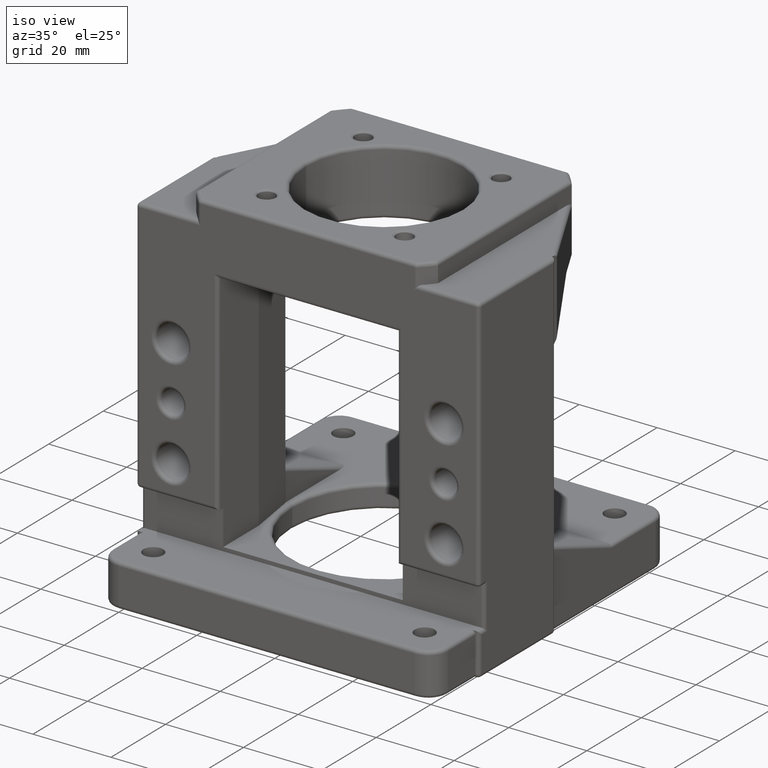
[diagram: clean part render]
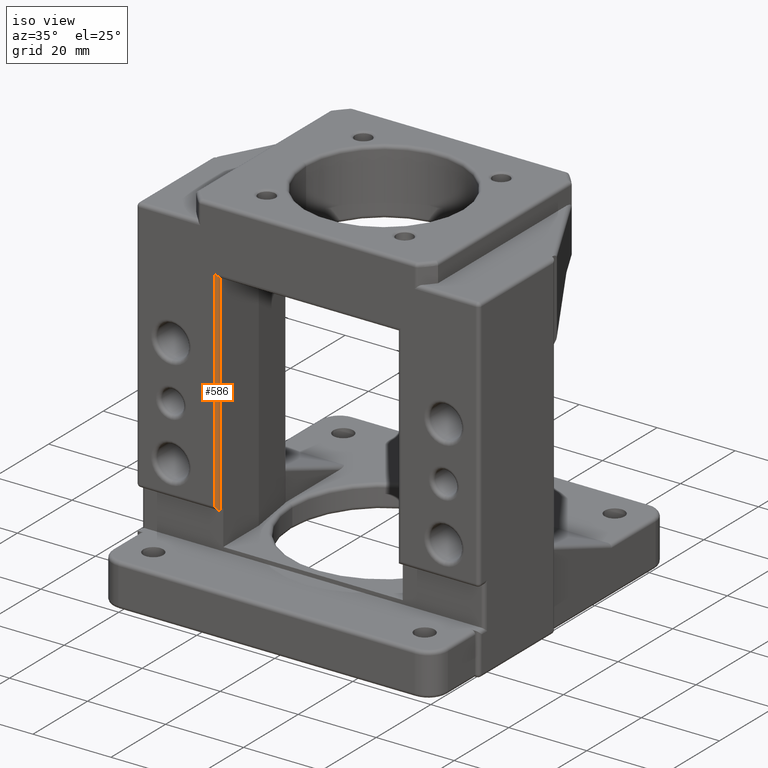
[diagram: same view with one face highlighted and labeled with its STEP entity id]
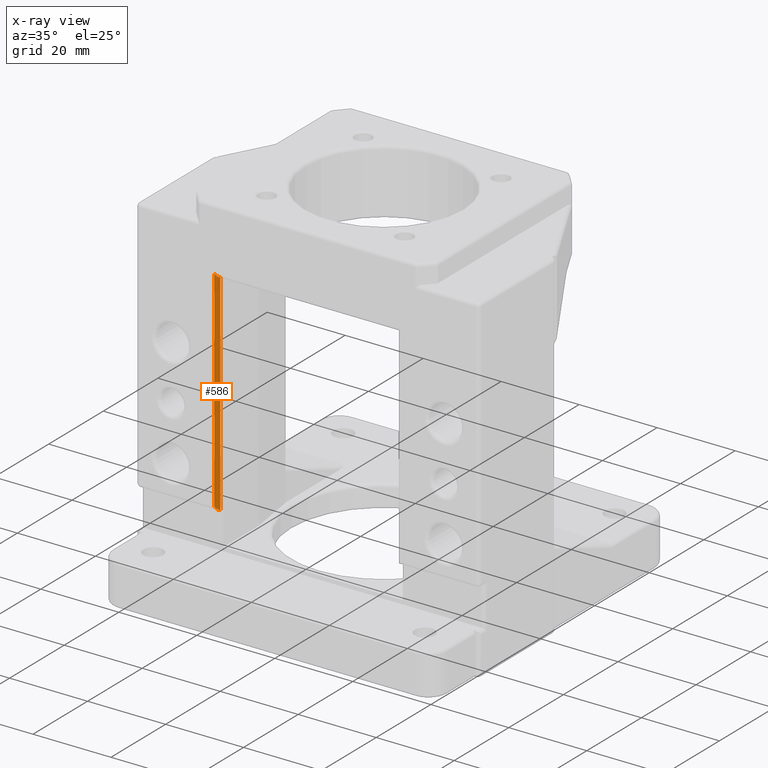
[diagram: x-ray of the same camera — body ghosted, the highlighted face saturated]
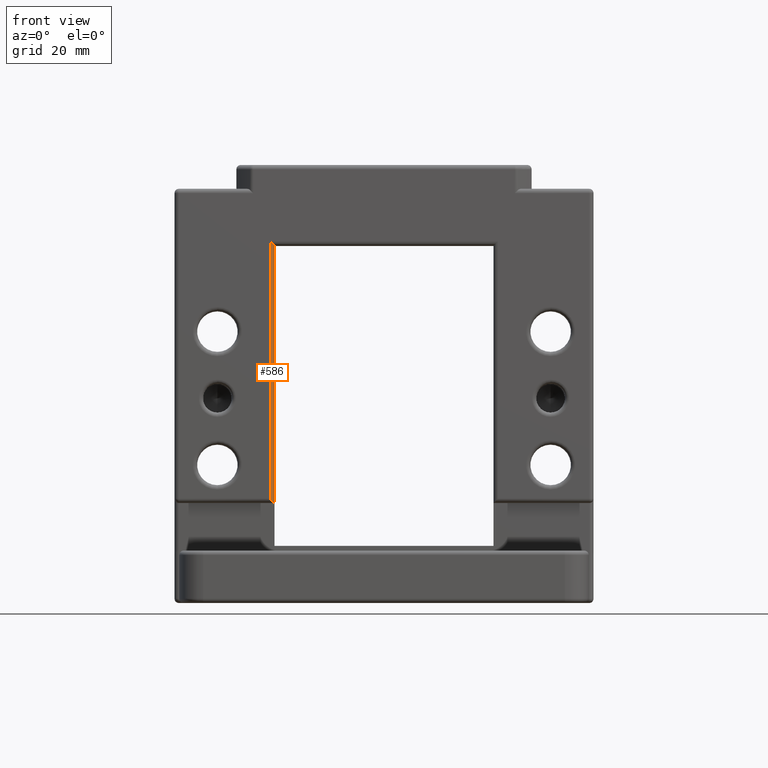
[diagram: same view with one face highlighted and labeled with its STEP entity id]
A machine part, iso view. The second image highlights one B-rep face of the part: STEP entity #586.
The next image is the same camera in x-ray: the body ghosted, the highlighted face saturated — about 0% of this face is hidden behind the body in this view.
A second angle (front view) of the same face is appended — the face is thin or edge-on in the first view.
In plain terms, the highlighted cylindrical surface (edge-blend (fillet) strip) has radius 0.9 mm, axis along (0, -0, -1).
Its self-contained STEP definition (entity closure, byte-faithful):
#399 =( BOUNDED_CURVE ( )  B_SPLINE_CURVE ( 3, ( #2135, #2136, #2137, #2138 ),
 .UNSPECIFIED., .F., .T. ) 
 B_SPLINE_CURVE_WITH_KNOTS ( ( 4, 4 ),
 ( 1.570796326794896600, 3.141592653589793100 ),
 .UNSPECIFIED. ) 
 CURVE ( )  GEOMETRIC_REPRESENTATION_ITEM ( )  RATIONAL_B_SPLINE_CURVE ( ( 1.000000000000000000, 0.8047378541243649400, 0.8047378541243649400, 1.000000000000000000 ) ) 
 REPRESENTATION_ITEM ( '' )  );
#418 =( BOUNDED_CURVE ( )  B_SPLINE_CURVE ( 3, ( #2104, #2105, #2106, #2107 ),
 .UNSPECIFIED., .F., .T. ) 
 B_SPLINE_CURVE_WITH_KNOTS ( ( 4, 4 ),
 ( 4.712388980384689700, 6.283185307179578200 ),
 .UNSPECIFIED. ) 
 CURVE ( )  GEOMETRIC_REPRESENTATION_ITEM ( )  RATIONAL_B_SPLINE_CURVE ( ( 1.000000000000000000, 0.8047378541243668200, 0.8047378541243668200, 1.000000000000000000 ) ) 
 REPRESENTATION_ITEM ( '' )  );
#450 = CARTESIAN_POINT ( 'NONE',  ( -22.99999999999999600, -27.09999999999998700, 81.00000000000000000 ) ) ;
#451 = DIRECTION ( 'NONE',  ( 0.0000000000000000000, -1.850371707708594300E-016, -1.000000000000000000 ) ) ;
#586 = ADVANCED_FACE ( 'NONE', ( #4243 ), #4244, .T. ) ;
#829 = CARTESIAN_POINT ( 'NONE',  ( -22.99999999999999600, -27.09999999999999100, 69.00000000000000000 ) ) ;
#1035 = VERTEX_POINT ( 'NONE', #5438 ) ;
#1041 = VERTEX_POINT ( 'NONE', #5730 ) ;
#1108 = VERTEX_POINT ( 'NONE', #829 ) ;
#1331 = VECTOR ( 'NONE', #1579, 1000.000000000000000 ) ;
#1578 = CARTESIAN_POINT ( 'NONE',  ( -23.89999999999999900, -27.99999999999998900, 81.00000000000000000 ) ) ;
#1579 = DIRECTION ( 'NONE',  ( -0.0000000000000000000, 1.850371707708594300E-016, 1.000000000000000000 ) ) ;
#2104 = CARTESIAN_POINT ( 'NONE',  ( -23.89999999999999900, -28.00000000000000400, 15.89999999999999700 ) ) ;
#2105 = CARTESIAN_POINT ( 'NONE',  ( -23.37279220613578400, -27.99999999999999300, 15.37279220613578400 ) ) ;
#2106 = CARTESIAN_POINT ( 'NONE',  ( -23.00000000000000400, -27.62720779386422300, 15.00000000000000200 ) ) ;
#2107 = CARTESIAN_POINT ( 'NONE',  ( -22.99999999999999600, -27.10000000000000500, 15.00000000000000000 ) ) ;
#2135 = CARTESIAN_POINT ( 'NONE',  ( -23.89999999999999900, -27.99999999999999300, 69.90000000000000600 ) ) ;
#2136 = CARTESIAN_POINT ( 'NONE',  ( -23.37279220613578400, -27.99999999999998900, 69.37279220613578400 ) ) ;
#2137 = CARTESIAN_POINT ( 'NONE',  ( -23.00000000000000000, -27.62720779386420800, 69.00000000000000000 ) ) ;
#2138 = CARTESIAN_POINT ( 'NONE',  ( -22.99999999999999600, -27.09999999999999100, 69.00000000000000000 ) ) ;
#3084 = VERTEX_POINT ( 'NONE', #3585 ) ;
#3527 = EDGE_LOOP ( 'NONE', ( #6778, #6779, #6780, #6781 ) ) ;
#3585 = CARTESIAN_POINT ( 'NONE',  ( -22.99999999999999600, -27.10000000000000500, 15.00000000000000000 ) ) ;
#3963 = EDGE_CURVE ( 'NONE', #1108, #3084, #4498, .T. ) ;
#3998 = EDGE_CURVE ( 'NONE', #1035, #1041, #4525, .T. ) ;
#4188 = EDGE_CURVE ( 'NONE', #1035, #3084, #418, .T. ) ;
#4195 = EDGE_CURVE ( 'NONE', #1041, #1108, #399, .T. ) ;
#4243 = FACE_OUTER_BOUND ( 'NONE', #3527, .T. ) ;
#4244 = CYLINDRICAL_SURFACE ( 'NONE', #7234, 0.9000000000000014700 ) ;
#4498 = LINE ( 'NONE', #450, #6489 ) ;
#4525 = LINE ( 'NONE', #1578, #1331 ) ;
#5334 = CARTESIAN_POINT ( 'NONE',  ( -23.89999999999999900, -27.09999999999998700, 81.00000000000000000 ) ) ;
#5438 = CARTESIAN_POINT ( 'NONE',  ( -23.89999999999999900, -28.00000000000000400, 15.89999999999999700 ) ) ;
#5730 = CARTESIAN_POINT ( 'NONE',  ( -23.89999999999999900, -27.99999999999999300, 69.90000000000000600 ) ) ;
#5732 = DIRECTION ( 'NONE',  ( 0.0000000000000000000, 1.000000000000000000, 0.0000000000000000000 ) ) ;
#5740 = DIRECTION ( 'NONE',  ( 0.0000000000000000000, -1.850371707708594300E-016, -1.000000000000000000 ) ) ;
#6489 = VECTOR ( 'NONE', #451, 1000.000000000000000 ) ;
#6778 = ORIENTED_EDGE ( 'NONE', *, *, #4188, .T. ) ;
#6779 = ORIENTED_EDGE ( 'NONE', *, *, #3963, .F. ) ;
#6780 = ORIENTED_EDGE ( 'NONE', *, *, #4195, .F. ) ;
#6781 = ORIENTED_EDGE ( 'NONE', *, *, #3998, .F. ) ;
#7234 = AXIS2_PLACEMENT_3D ( 'NONE', #5334, #5740, #5732 ) ;